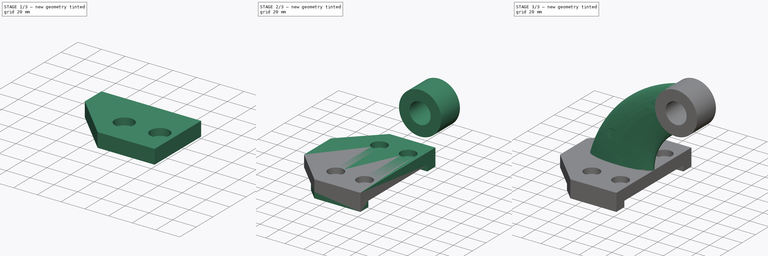
[diagram: build sequence overview — one tinted view per stage of 3, left to right]
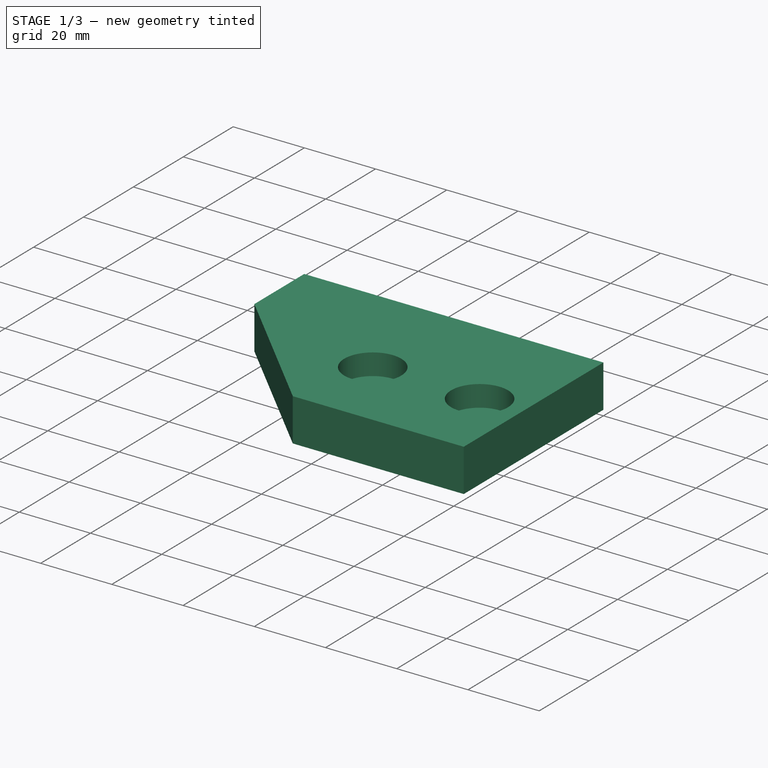
[diagram: stage 1 of 3 — iso view after this stage's code; geometry added in this stage tinted green]
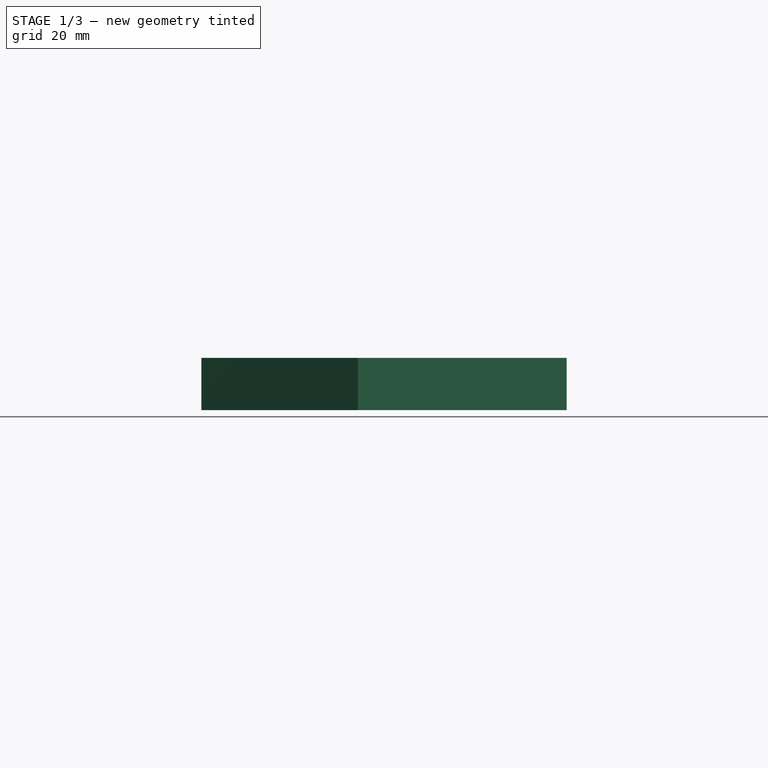
[diagram: stage 1 of 3 — front view after this stage's code; geometry added in this stage tinted green]
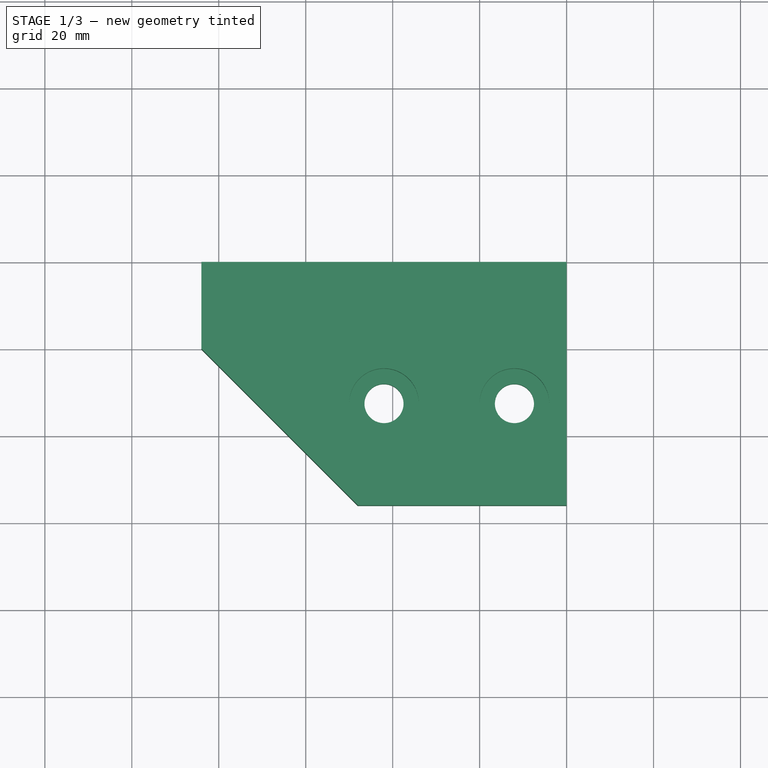
[diagram: stage 1 of 3 — top view after this stage's code; geometry added in this stage tinted green]
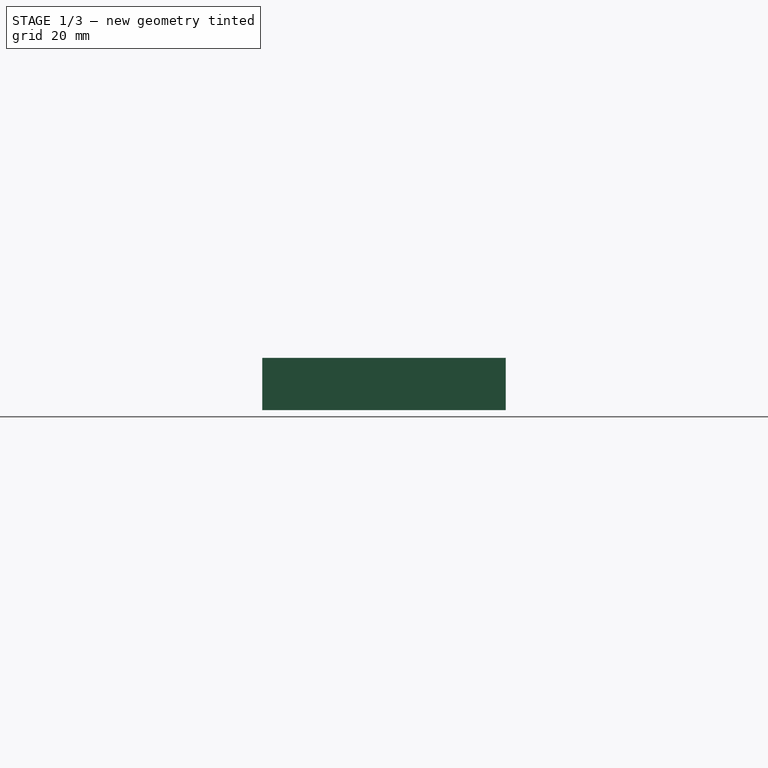
[diagram: stage 1 of 3 — right view after this stage's code; geometry added in this stage tinted green]
FCSTD DOCUMENT  (FreeCAD 1.1R20251125 (Git shallow))
Label: 24-28-17
License: All rights reserved
LicenseURL: https://en.wikipedia.org/wiki/All_rights_reserved
objects: Sketcher::SketchObject×10, Part::DatumPlane×4, PartDesign::Pad×3, PartDesign::Pocket×2, App::Point×1, PartDesign::Mirrored×1, PartDesign::AdditivePipe×1, PartDesign::Body×1
note: 41 computed .brp shape members not serialized (recipe doc carries the construction recipe); baked Part::Feature solids carry a one-line shape summary decoded from their .brp

FEATURE [App::Point] Origin001
  Role = Origin
FEATURE [Sketcher::SketchObject] Sketch
  ArcFitTolerance = 1e-06
  AttachmentSupport = -> [Origin]
  ExternalTypes = [0]
  FullyConstrained = true
  MakeInternals = false
  MapMode = 5
  sketch-geometry (7):
    g0: LineSegment StartX=0 StartY=0 StartZ=0 EndX=-84 EndY=0 EndZ=0
    g1: LineSegment StartX=-84 StartY=0 StartZ=0 EndX=-84 EndY=-20 EndZ=0
    g2: LineSegment StartX=-84 StartY=-20 StartZ=0 EndX=-48 EndY=-56 EndZ=0
    g3: LineSegment StartX=-48 StartY=-56 StartZ=0 EndX=0 EndY=-56 EndZ=0
    g4: LineSegment StartX=0 StartY=-56 StartZ=0 EndX=0 EndY=0 EndZ=0
    g5: Circle CenterX=-42 CenterY=-32.5 CenterZ=0 NormalX=0 NormalY=0 NormalZ=1 AngleXU=0 Radius=4.5
    g6: Circle CenterX=-12 CenterY=-32.5 CenterZ=0 NormalX=0 NormalY=0 NormalZ=1 AngleXU=0 Radius=4.5
  constraints (20):
    c: Coincident(g-1,g0)
    c: PointOnObject(g0,g-1)
    c: Coincident(g0,g1)
    c: Vertical(g1)
    c: Coincident(g1,g2)
    c: Coincident(g2,g3)
    c: PointOnObject(g3,g-2)
    c: Horizontal(g3)
    c: Coincident(g3,g4)
    c: Coincident(g4,g0)
    c: Angle(g2,g3) = 0.785398
    c: DistanceY(g1,g1) = 20
    c: DistanceX(g0,g0) = 84
    c: DistanceY(g4,g4) = 56
    c: Equal(g5,g6)
    c: Horizontal(g5,g6)
    c: DistanceX(g5,g6) = 30
    c: Distance(g6,g4) = 12
    c: Distance(g6,g0) = 32.5
    c: Diameter(g6) = 9
FEATURE [PartDesign::Pad] Pad
  Direction = (0,0,1)
  Length = 12
  Length2 = 10
  Profile = -> Sketch
  ReferenceAxis = -> Sketch [N_Axis]
  Refine = true
  SideType = 0
  Suppressed = false
  Type = 0
  Type2 = 0
FEATURE [Sketcher::SketchObject] Sketch001
  ArcFitTolerance = 1e-06
  AttachmentSupport = -> [Pad]
  ExternalTypes = [0]
  FullyConstrained = true
  MakeInternals = false
  MapMode = 5
  Placement = pos=(0,0,12) rot=(0,0,1;0rad)
  sketch-geometry (2):
    g0: Circle CenterX=-42 CenterY=-32.5 CenterZ=0 NormalX=0 NormalY=0 NormalZ=1 AngleXU=0 Radius=8
    g1: Circle CenterX=-12 CenterY=-32.5 CenterZ=0 NormalX=0 NormalY=0 NormalZ=1 AngleXU=0 Radius=8
  constraints (6):
    c: Horizontal(g1,g0)
    c: Equal(g0,g1)
    c: Radius(g1) = 8
    c: DistanceX(g0,g1) = 30
    c: DistanceX(g1) = -12
    c: DistanceY(g1) = -32.5
FEATURE [PartDesign::Pocket] Pocket
  BaseFeature = -> Pad
  Direction = (0,0,-1)
  Length = 6
  Length2 = 5
  Profile = -> Sketch001
  ReferenceAxis = -> Sketch001 [N_Axis]
  Refine = true
  SideType = 0
  Suppressed = false
  Type = 0
  Type2 = 0
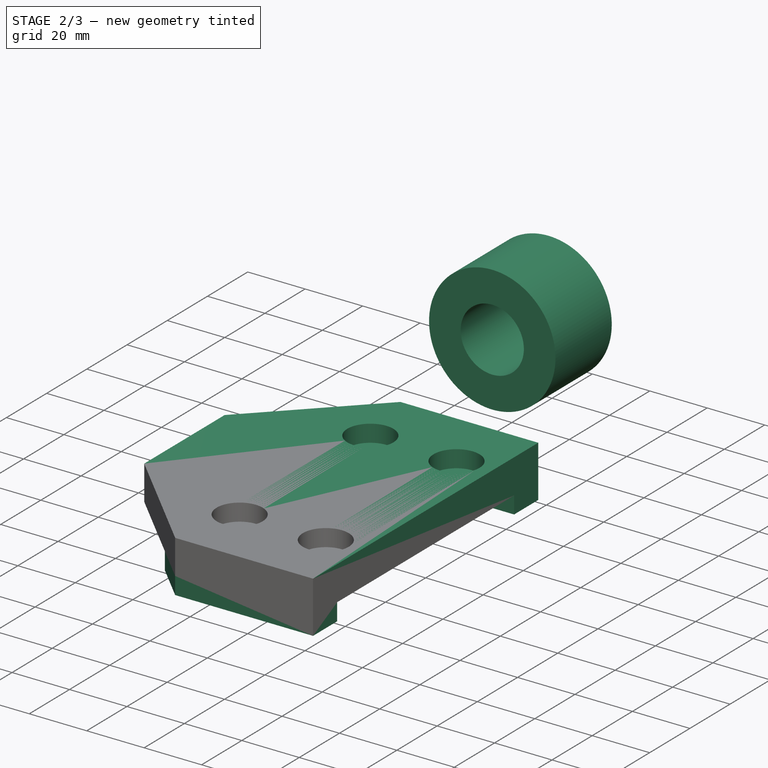
[diagram: stage 2 of 3 — iso view after this stage's code; geometry added in this stage tinted green]
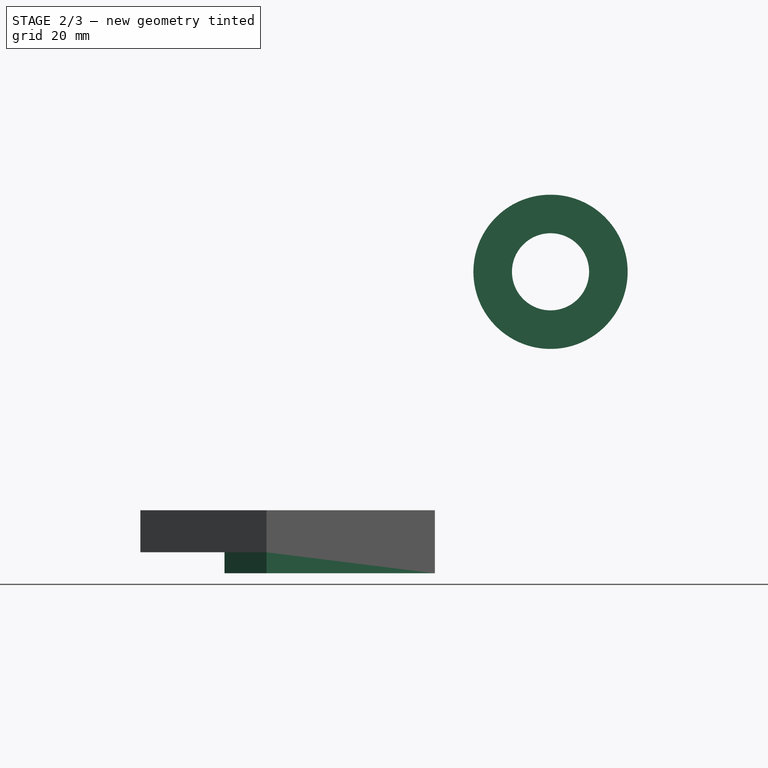
[diagram: stage 2 of 3 — front view after this stage's code; geometry added in this stage tinted green]
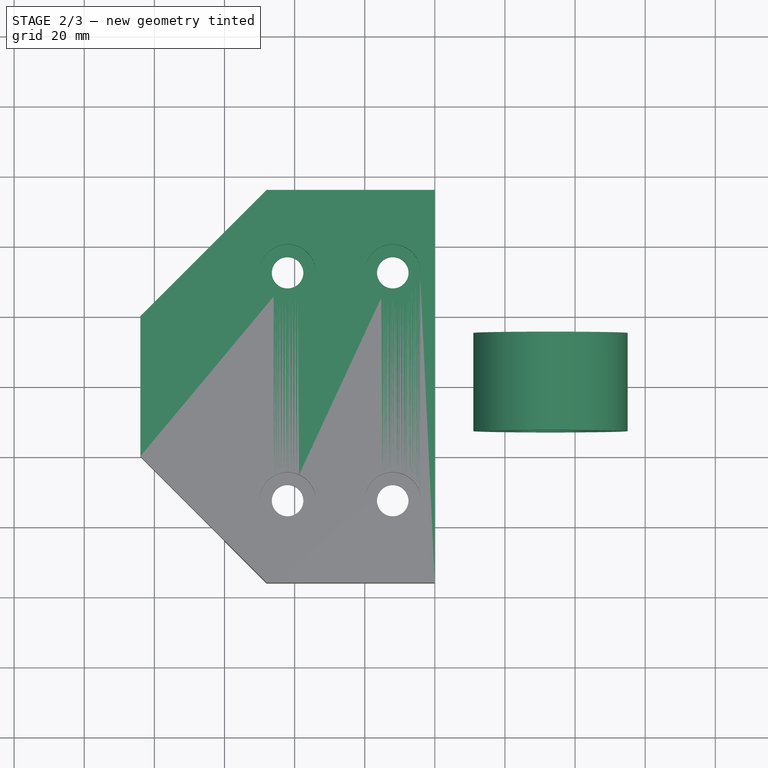
[diagram: stage 2 of 3 — top view after this stage's code; geometry added in this stage tinted green]
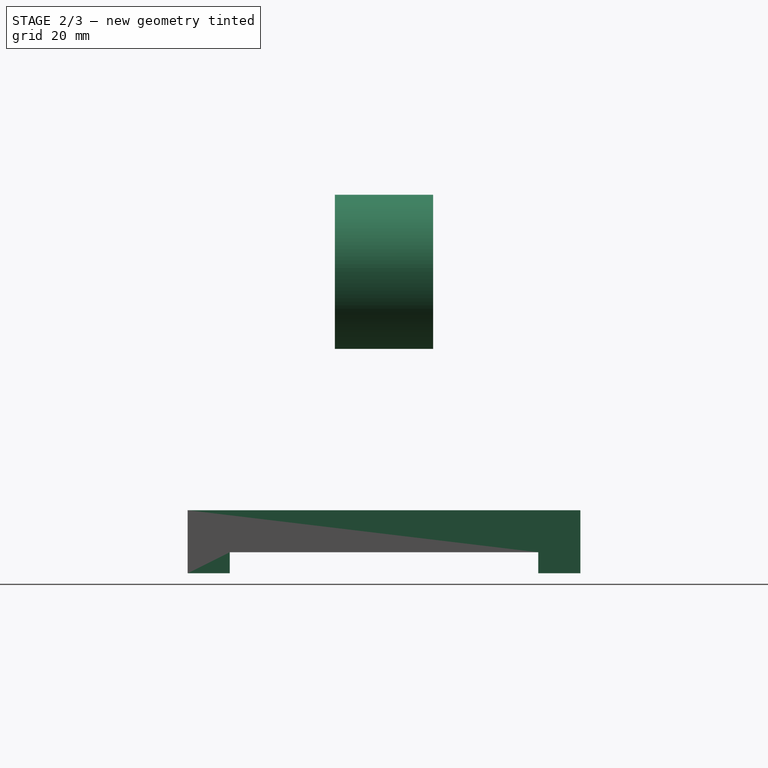
[diagram: stage 2 of 3 — right view after this stage's code; geometry added in this stage tinted green]
FEATURE [Sketcher::SketchObject] Sketch002
  ArcFitTolerance = 1e-06
  AttachmentSupport = -> [Origin]
  ExternalGeometry = -> [Pocket]
  ExternalTypes = [0]
  FullyConstrained = true
  MakeInternals = false
  MapMode = 5
  sketch-geometry (4):
    g0: LineSegment StartX=-48 StartY=-56 StartZ=0 EndX=-60 EndY=-44 EndZ=0
    g1: LineSegment StartX=-60 StartY=-44 StartZ=0 EndX=0 EndY=-44 EndZ=0
    g2: LineSegment StartX=0 StartY=-44 StartZ=0 EndX=0 EndY=-56 EndZ=0
    g3: LineSegment StartX=-48 StartY=-56 StartZ=0 EndX=0 EndY=-56 EndZ=0
  constraints (10):
    c: Coincident(g0,g1)
    c: PointOnObject(g1,g-2)
    c: Horizontal(g1)
    c: Coincident(g1,g2)
    c: Coincident(g0,g-3)
    c: Coincident(g2,g-3)
    c: DistanceY(g2,g2) = 12
    c: Angle(g0,g1) = 0.785398
    c: Coincident(g0,g3)
    c: Coincident(g3,g2)
FEATURE [PartDesign::Pad] Pad001
  BaseFeature = -> Pocket
  Direction = (0,0,1)
  Length = 6
  Length2 = 10
  Profile = -> Sketch002
  ReferenceAxis = -> Sketch002 [N_Axis]
  Refine = true
  Reversed = true
  SideType = 0
  Suppressed = false
  Type = 0
  Type2 = 0
FEATURE [PartDesign::Mirrored] Mirrored
  BaseFeature = -> Pad001
  MirrorPlane = -> Pad001 [Face1]
  Originals = -> [Pad,Pocket,Pad001]
  Refine = true
  Suppressed = false
  TransformMode = 0
FEATURE [Sketcher::SketchObject] Sketch003
  ArcFitTolerance = 1e-06
  AttachmentSupport = -> [Origin]
  ExternalTypes = [0]
  FullyConstrained = true
  MakeInternals = false
  MapMode = 5
  Placement = pos=(0,0,0) rot=(1,0,0;1.5708rad)
  sketch-geometry (5):
    g0: ArcOfCircle [constr] CenterX=54.6472 CenterY=-20.6996 CenterZ=0 NormalX=0 NormalY=0 NormalZ=1 AngleXU=0 Radius=125 StartAngle=1.78254 EndAngle=2.87692
    g1: Circle CenterX=33 CenterY=80 CenterZ=0 NormalX=0 NormalY=0 NormalZ=1 AngleXU=0 Radius=11
    g2: Circle CenterX=33 CenterY=80 CenterZ=0 NormalX=0 NormalY=0 NormalZ=1 AngleXU=0 Radius=22
    g3: ArcOfCircle [constr] CenterX=47.5364 CenterY=12 CenterZ=0 NormalX=0 NormalY=0 NormalZ=1 AngleXU=0 Radius=47.5364 StartAngle=1.7814 EndAngle=3.14159
    g4: GeomPoint X=51.0918 Y=-4.34978 Z=0
  constraints (14):
    c: Radius(g0) = 125
    c: Coincident(g2,g1)
    c: DistanceY(g1) = 80
    c: DistanceX(g1) = 33
    c: Tangent(g0,g2) = -1.5708
    c: Diameter(g2) = 44
    c: Diameter(g1) = 22
    c: DistanceY(g0) = 12
    c: DistanceX(g0) = -66
    c: PointOnObject(g3,g-2)
    c: Tangent(g3,g2) = 1.5708
    c: Horizontal(g3,g3)
    c: DistanceY(g3) = 12
    c: Symmetric(g0,g3,g4)
FEATURE [PartDesign::Pad] Pad002
  BaseFeature = -> Mirrored
  Direction = (0,-1,2e-16)
  Length = 28
  Length2 = 10
  Profile = -> Sketch003 [Edge1,Edge2]
  ReferenceAxis = -> Sketch003 [N_Axis]
  Refine = true
  SideType = 2
  Suppressed = false
  Type = 0
  Type2 = 0
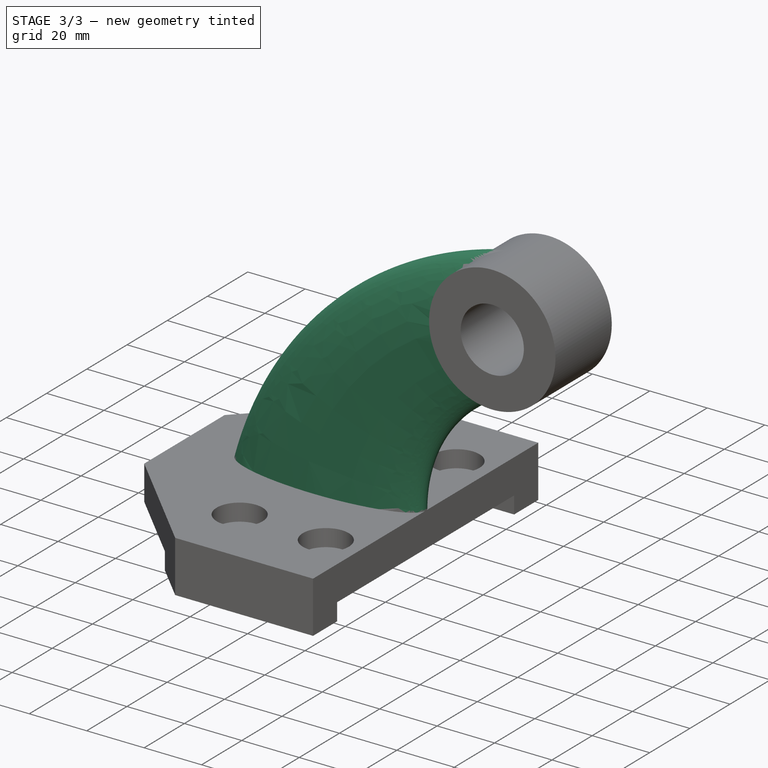
[diagram: stage 3 of 3 — iso view after this stage's code; geometry added in this stage tinted green]
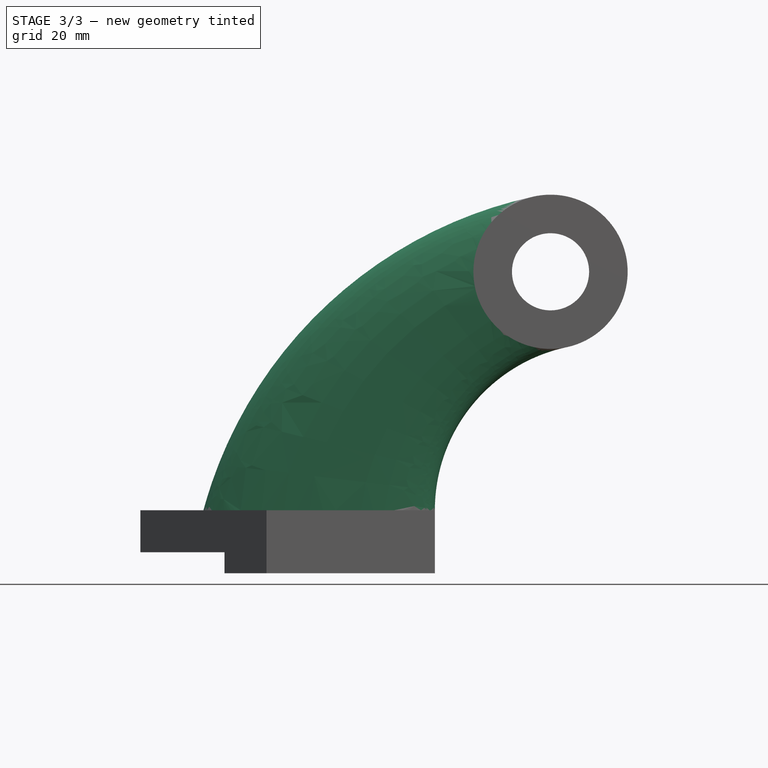
[diagram: stage 3 of 3 — front view after this stage's code; geometry added in this stage tinted green]
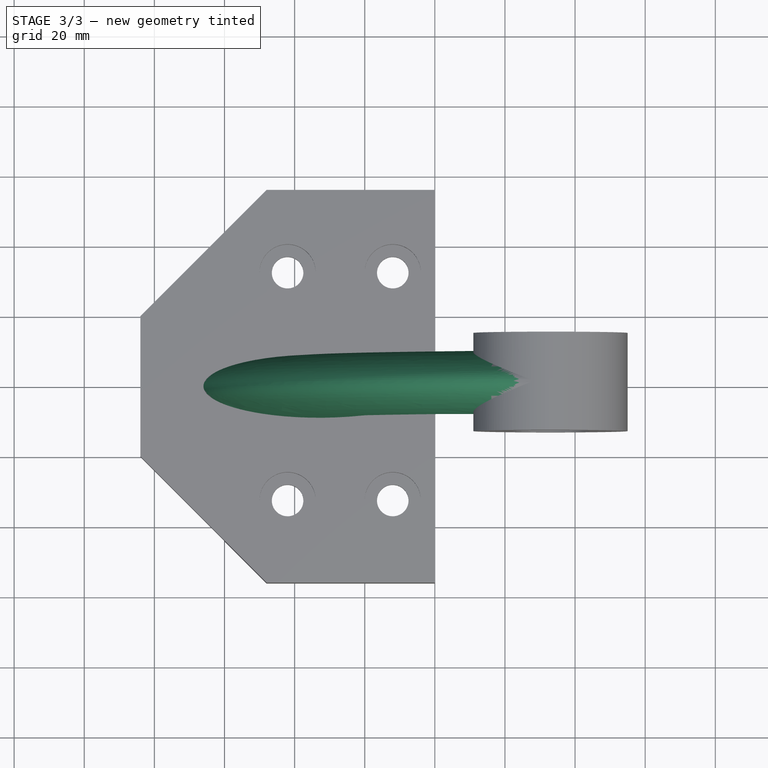
[diagram: stage 3 of 3 — top view after this stage's code; geometry added in this stage tinted green]
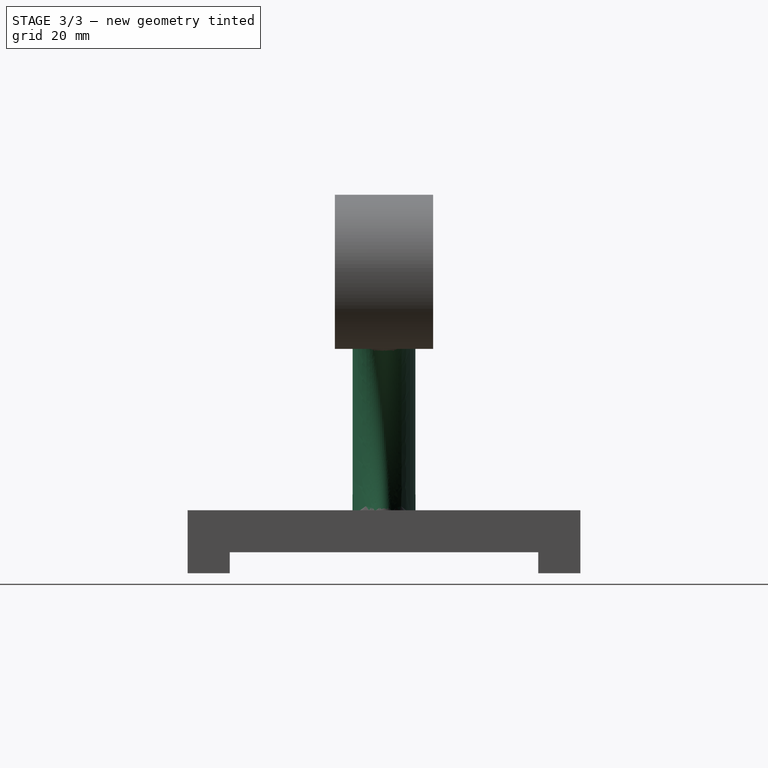
[diagram: stage 3 of 3 — right view after this stage's code; geometry added in this stage tinted green]
FEATURE [Sketcher::SketchObject] Sketch004
  ArcFitTolerance = 1e-06
  AttachmentSupport = -> [Origin]
  ExternalTypes = [0]
  FullyConstrained = false
  MakeInternals = false
  MapMode = 5
  Placement = pos=(0,0,0) rot=(1,0,0;1.5708rad)
  sketch-geometry (10):
    g0: ArcOfCircle CenterX=54.6472 CenterY=-20.6996 CenterZ=0 NormalX=0 NormalY=0 NormalZ=1 AngleXU=0 Radius=125 StartAngle=1.78254 EndAngle=2.87692
    g1: ArcOfCircle CenterX=47.5364 CenterY=12 CenterZ=0 NormalX=0 NormalY=0 NormalZ=1 AngleXU=0 Radius=47.5364 StartAngle=1.7814 EndAngle=3.14159
    g2: Circle [constr] CenterX=33 CenterY=80 CenterZ=0 NormalX=0 NormalY=0 NormalZ=1 AngleXU=0 Radius=22
    g3: LineSegment StartX=47.5364 StartY=12 StartZ=0 EndX=11.7631 EndY=22.0995 EndZ=0
    g4: LineSegment StartX=47.5364 StartY=12 StartZ=0 EndX=17.8096 EndY=34.5583 EndZ=0
    g5: LineSegment StartX=47.5364 StartY=12 StartZ=0 EndX=27.8385 EndY=44.0761 EndZ=0
    g6: GeomPoint X=-30.2611 Y=71.0369 Z=0
    g7: GeomPoint X=-1.0912 Y=91.1854 Z=0
    g8: GeomPoint X=9.66882 Y=40.7359 Z=0
    g9: GeomPoint X=22.6605 Y=52.508 Z=0
  constraints (24):
    c: DistanceY(g-1,g1) = 12
    c: Diameter(g2) = 44
    c: Tangent(g0,g2) = -1.5708
    c: Tangent(g1,g2) = 1.5708
    c: DistanceX(g-2,g2) = 33
    c: DistanceY(g-1,g2) = 80
    c: Tangent(g1,g-2) = 1.5708
    c: Horizontal(g0,g1)
    c: DistanceX(g-2,g0) = -66
    c: Radius(g0) = 125
    c: Coincident(g3,g4)
    c: Coincident(g3,g5)
    c: Coincident(g1,g3)
    c: Angle(g5,g4) = 0.370931
    c: Angle(g4,g3) = 0.373986
    c: Angle(g3,g-1) = 0.275158
    c: PointOnObject(g6,g0)
    c: PointOnObject(g7,g0)
    c: PointOnObject(g6,g4)
    c: PointOnObject(g7,g5)
    c: PointOnObject(g8,g1)
    c: PointOnObject(g9,g1)
    c: PointOnObject(g9,g5)
    c: PointOnObject(g8,g4)
FEATURE [Part::DatumPlane] DatumPlane
  AttachmentSupport = -> [Sketch004]
  MapMode = 51
  Placement = pos=(37.599,1.3e-14,58.4861) rot=(0.532217,0.532217,0.658399;1.97708rad)
FEATURE [Sketcher::SketchObject] Sketch005
  ArcFitTolerance = 1e-06
  AttachmentSupport = -> [DatumPlane]
  ExternalGeometry = -> [Sketch004]
  ExternalTypes = [0]
  FullyConstrained = true
  MakeInternals = false
  MapMode = 5
  Placement = pos=(37.599,1.3e-14,58.4861) rot=(0.532217,0.532217,0.658399;1.97708rad)
  sketch-geometry (5):
    g0: Ellipse CenterX=3.6e-15 CenterY=22 CenterZ=0 NormalX=0 NormalY=0 NormalZ=1 MajorRadius=22 MinorRadius=9 AngleXU=1.5708
    g1: LineSegment [constr] StartX=9e-15 StartY=44 StartZ=0 EndX=0 EndY=0 EndZ=0
    g2: LineSegment [constr] StartX=-9 StartY=22 StartZ=0 EndX=9 EndY=22 EndZ=0
    g3: GeomPoint [constr] X=1.02e-14 Y=42.0749 Z=0
    g4: GeomPoint [constr] X=4e-16 Y=1.92514 Z=0
  constraints (4):
    c: InternalAlignment(g1-g4 -> g0) x4
    c: DistanceX(g2,g2) = 18
    c: Coincident(g1,g-1)
    c: Coincident(g1,g-3)
FEATURE [Part::DatumPlane] DatumPlane001
  AttachmentSupport = -> [Sketch004]
  MapMode = 51
  Placement = pos=(47.5364,2.7e-15,12) rot=(0.438718,0.438718,0.784253;1.81146rad)
FEATURE [Part::DatumPlane] DatumPlane002
  AttachmentSupport = -> [Sketch004]
  MapMode = 51
  Placement = pos=(47.5364,2.7e-15,12) rot=(0.303828,0.303828,0.902983;1.67267rad)
FEATURE [Part::DatumPlane] DatumPlane003
  AttachmentSupport = -> [Sketch004]
  MapMode = 51
  Placement = pos=(47.5364,2.7e-15,12) rot=(0.135874,0.135874,0.981365;1.58961rad)
FEATURE [Sketcher::SketchObject] Sketch006
  ArcFitTolerance = 1e-06
  AttachmentSupport = -> [DatumPlane001]
  ExternalGeometry = -> [Sketch004]
  ExternalTypes = [0,0]
  FullyConstrained = true
  MakeInternals = false
  MapMode = 5
  Placement = pos=(47.5364,2.7e-15,12) rot=(0.438718,0.438718,0.784253;1.81146rad)
  sketch-geometry (5):
    g0: Ellipse CenterX=1.42e-14 CenterY=70.2304 CenterZ=0 NormalX=0 NormalY=0 NormalZ=1 MajorRadius=22.6941 MinorRadius=9 AngleXU=1.5708
    g1: LineSegment [constr] StartX=1.49e-14 StartY=92.9245 StartZ=0 EndX=7.6e-15 EndY=47.5364 EndZ=0
    g2: LineSegment [constr] StartX=-9 StartY=70.2304 StartZ=0 EndX=9 EndY=70.2304 EndZ=0
    g3: GeomPoint [constr] X=1.65e-14 Y=91.0636 Z=0
    g4: GeomPoint [constr] X=7.9e-15 Y=49.3973 Z=0
  constraints (4):
    c: InternalAlignment(g1-g4 -> g0) x4
    c: DistanceX(g2,g2) = 18
    c: Coincident(g1,g-4)
    c: Coincident(g1,g-3)
FEATURE [Sketcher::SketchObject] Sketch007
  ArcFitTolerance = 1e-06
  AttachmentSupport = -> [DatumPlane002]
  ExternalGeometry = -> [Sketch004]
  ExternalTypes = [0,0]
  FullyConstrained = true
  MakeInternals = false
  MapMode = 5
  Placement = pos=(47.5364,2.7e-15,12) rot=(0.303828,0.303828,0.902983;1.67267rad)
  sketch-geometry (5):
    g0: Ellipse CenterX=2.84e-14 CenterY=72.599 CenterZ=0 NormalX=0 NormalY=0 NormalZ=1 MajorRadius=25.0627 MinorRadius=9 AngleXU=1.5708
    g1: LineSegment [constr] StartX=2.93e-14 StartY=97.6617 StartZ=0 EndX=1.43e-14 EndY=47.5364 EndZ=0
    g2: LineSegment [constr] StartX=-9 StartY=72.599 StartZ=0 EndX=9 EndY=72.599 EndZ=0
    g3: GeomPoint [constr] X=3.62e-14 Y=95.99 Z=0
    g4: GeomPoint [constr] X=1.48e-14 Y=49.2081 Z=0
  constraints (4):
    c: InternalAlignment(g1-g4 -> g0) x4
    c: DistanceX(g2,g2) = 18
    c: Coincident(g1,g-4)
    c: Coincident(g1,g-3)
FEATURE [Sketcher::SketchObject] Sketch008
  ArcFitTolerance = 1e-06
  AttachmentSupport = -> [DatumPlane003]
  ExternalGeometry = -> [Sketch004]
  ExternalTypes = [1,1]
  FullyConstrained = true
  MakeInternals = false
  MapMode = 5
  Placement = pos=(47.5364,2.7e-15,12) rot=(0.135874,0.135874,0.981365;1.58961rad)
  sketch-geometry (5):
    g0: Ellipse CenterX=0 CenterY=76.6343 CenterZ=0 NormalX=0 NormalY=0 NormalZ=1 MajorRadius=29.098 MinorRadius=9 AngleXU=1.5708
    g1: LineSegment [constr] StartX=6.4e-15 StartY=105.732 StartZ=0 EndX=2.9e-15 EndY=47.5364 EndZ=0
    g2: LineSegment [constr] StartX=-9 StartY=76.6343 StartZ=0 EndX=9 EndY=76.6343 EndZ=0
    g3: GeomPoint [constr] X=3.1e-15 Y=104.305 Z=0
    g4: GeomPoint [constr] X=3e-15 Y=48.9632 Z=0
  constraints (4):
    c: InternalAlignment(g1-g4 -> g0) x4
    c: DistanceX(g2,g2) = 18
    c: Coincident(g1,g-4)
    c: Coincident(g1,g-3)
FEATURE [Sketcher::SketchObject] Sketch009
  ArcFitTolerance = 1e-06
  AttachmentOffset = pos=(0,0,12) rot=(0,0,1;0rad)
  AttachmentSupport = -> [Origin]
  ExternalGeometry = -> [Sketch004]
  ExternalTypes = [1]
  FullyConstrained = true
  MakeInternals = false
  MapMode = 5
  Placement = pos=(0,0,12) rot=(0,0,1;0rad)
  sketch-geometry (5):
    g0: Ellipse CenterX=-33 CenterY=1.3e-15 CenterZ=0 NormalX=0 NormalY=0 NormalZ=1 MajorRadius=33 MinorRadius=9 AngleXU=3.14159
    g1: LineSegment [constr] StartX=-66 StartY=2.7e-15 StartZ=0 EndX=0 EndY=0 EndZ=0
    g2: LineSegment [constr] StartX=-33 StartY=-9 StartZ=0 EndX=-33 EndY=9 EndZ=0
    g3: GeomPoint [constr] X=-64.749 Y=2.6e-15 Z=0
    g4: GeomPoint [constr] X=-1.25098 Y=1e-16 Z=0
  constraints (4):
    c: InternalAlignment(g1-g4 -> g0) x4
    c: DistanceY(g2,g2) = 18
    c: Coincident(g1,g-1)
    c: Coincident(g1,g-3)
FEATURE [PartDesign::AdditivePipe] AdditivePipe
  AuxiliaryCurvilinear = true
  AuxiliarySpineTangent = false
  BaseFeature = -> Pad002
  Binormal = (0,0,0)
  Mode = 0
  Profile = -> Sketch009 [Edge1]
  Refine = true
  Sections = -> [Sketch005,Sketch006,Sketch007,Sketch008]
  Spine = -> Sketch004 [Edge1]
  SpineTangent = false
  Suppressed = false
  Transformation = 1
  Transition = 0
FEATURE [PartDesign::Pocket] Pocket001
  BaseFeature = -> AdditivePipe
  Direction = (0,-1,0)
  Length = 5
  Length2 = 5
  Profile = -> AdditivePipe [Edge69]
  Refine = true
  Reversed = true
  SideType = 0
  Suppressed = false
  Type = 1
  Type2 = 0
FEATURE [PartDesign::Body] Body
  AllowCompound = true
  Group = -> [Sketch,Pad,Sketch001,Pocket,Sketch002,Pad001,Mirrored,Sketch003,Pad002,Sketch004,DatumPlane003,DatumPlane,DatumPlane001,DatumPlane002,Sketch005,Sketch006,Sketch007,Sketch008,Sketch009,AdditivePipe,Pocket001]
  Origin = -> Origin
  Tip = -> Pocket001
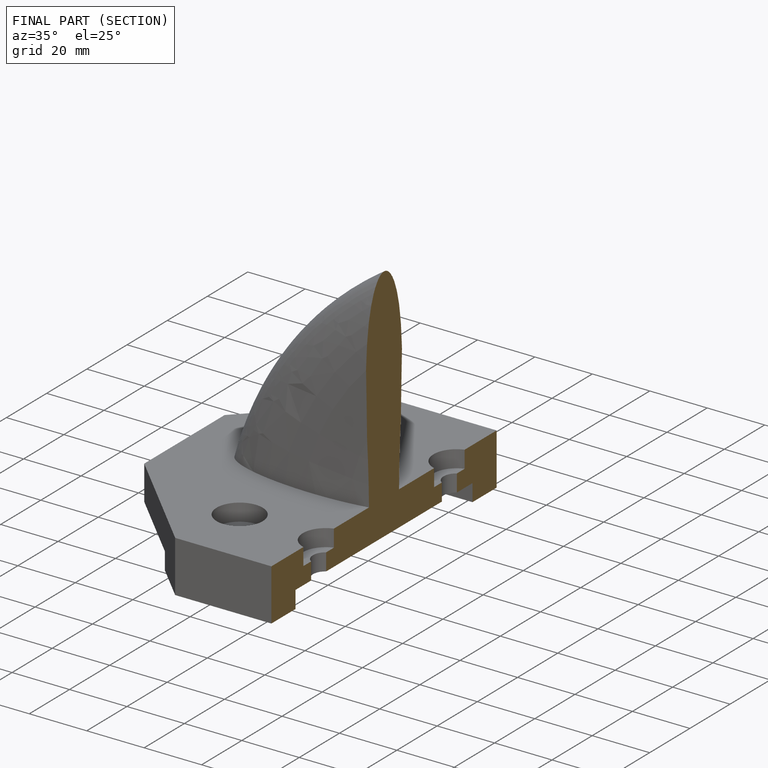
[diagram: finished part — half-section view (interior)]
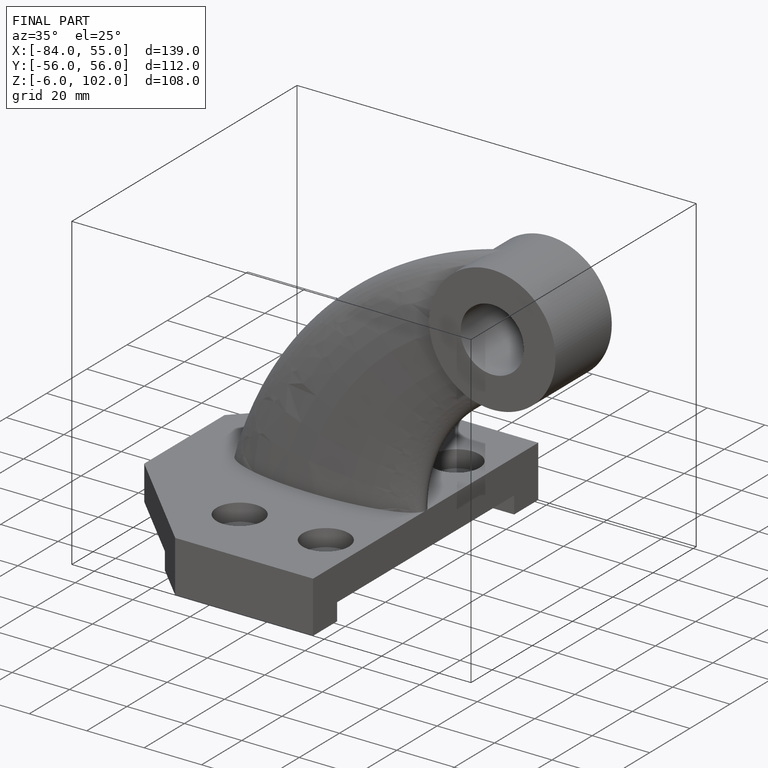
[diagram: finished part — iso view with bounding-box wireframe]
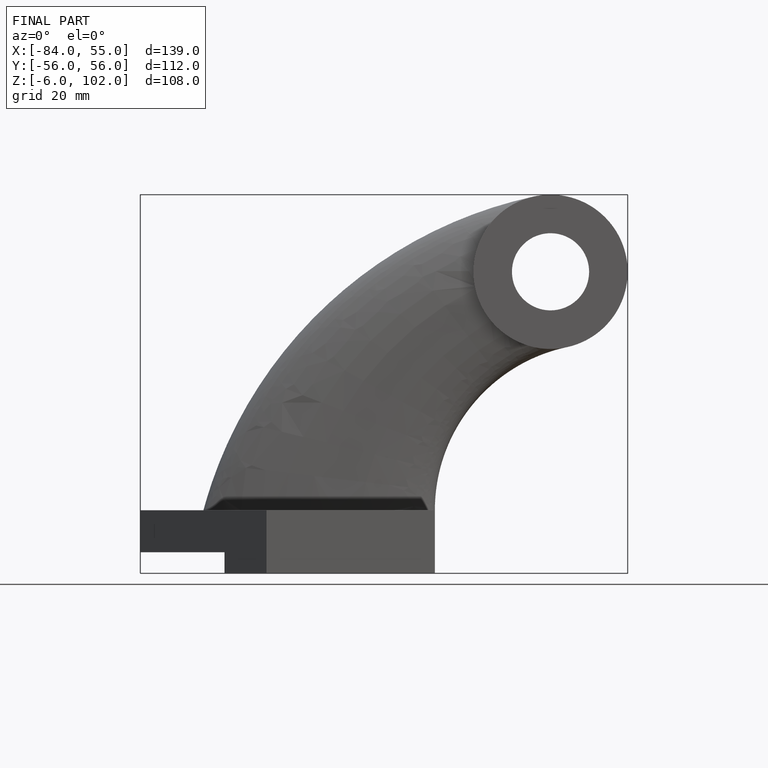
[diagram: finished part — front view with bounding-box wireframe]
